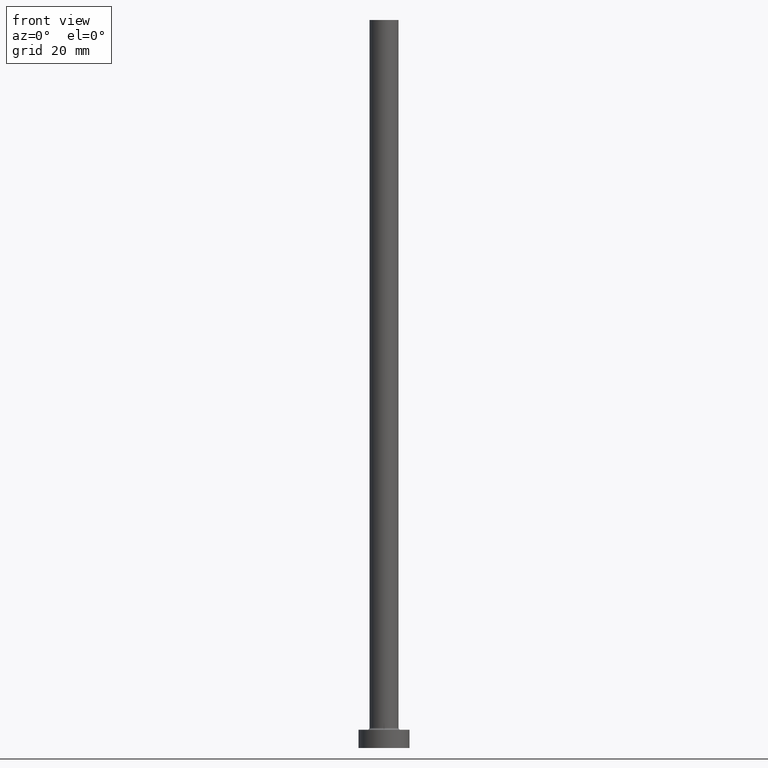
[diagram: clean part render]
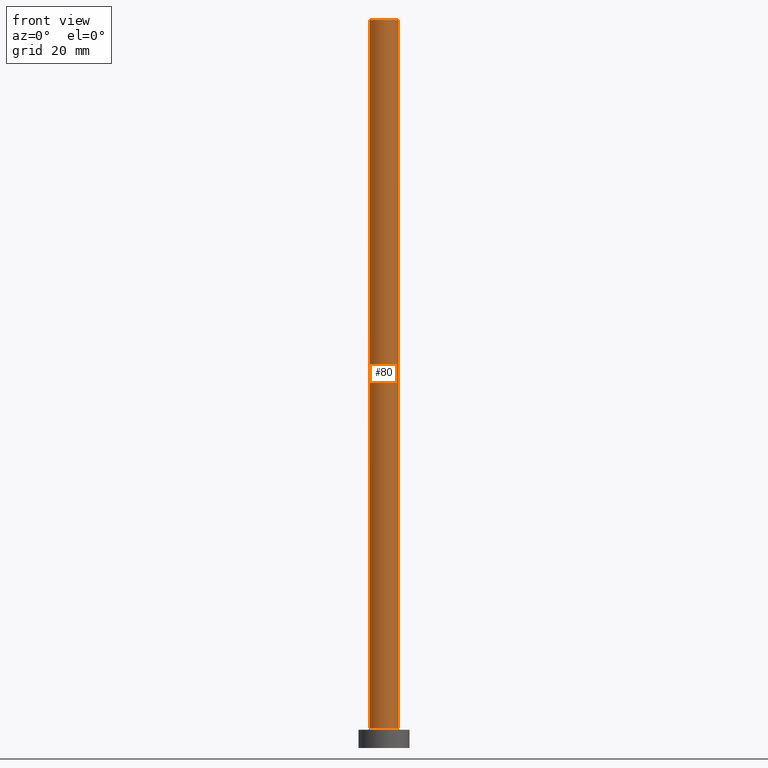
[diagram: same view with one face highlighted and labeled with its STEP entity id]
A machine part, front view. The second image highlights one B-rep face of the part: STEP entity #80.
In plain terms, the highlighted cylindrical surface (edge-blend (fillet) strip) has radius 4 mm, axis along (-0, -0, -1).
Its self-contained STEP definition (entity closure, byte-faithful):
#5 = CARTESIAN_POINT ( 'NONE',  ( -4.000000000000000000, 0.000000000000000000, 200.0000000000000000 ) ) ;
#15 = VERTEX_POINT ( 'NONE', #35 ) ;
#19 = VERTEX_POINT ( 'NONE', #49 ) ;
#35 = CARTESIAN_POINT ( 'NONE',  ( -4.000000000000000000, 0.000000000000000000, 200.0000000000000000 ) ) ;
#49 = CARTESIAN_POINT ( 'NONE',  ( 4.000000000000000000, 4.898587196589412829E-16, 5.500000000000005329 ) ) ;
#78 = AXIS2_PLACEMENT_3D ( 'NONE', #422, #112, #251 ) ;
#80 = ADVANCED_FACE ( 'NONE', ( #144 ), #283, .T. ) ;
#89 = CIRCLE ( 'NONE', #337, 4.000000000000000000 ) ;
#112 = DIRECTION ( 'NONE',  ( -0.000000000000000000, -0.000000000000000000, -1.000000000000000000 ) ) ;
#144 = FACE_OUTER_BOUND ( 'NONE', #444, .T. ) ;
#145 = DIRECTION ( 'NONE',  ( 1.000000000000000000, 0.000000000000000000, 0.000000000000000000 ) ) ;
#172 = ORIENTED_EDGE ( 'NONE', *, *, #316, .F. ) ;
#175 = DIRECTION ( 'NONE',  ( -0.000000000000000000, -0.000000000000000000, -1.000000000000000000 ) ) ;
#209 = DIRECTION ( 'NONE',  ( 0.000000000000000000, 0.000000000000000000, 1.000000000000000000 ) ) ;
#234 = ORIENTED_EDGE ( 'NONE', *, *, #333, .F. ) ;
#245 = VERTEX_POINT ( 'NONE', #435 ) ;
#251 = DIRECTION ( 'NONE',  ( -1.000000000000000000, 0.000000000000000000, 0.000000000000000000 ) ) ;
#270 = VECTOR ( 'NONE', #175, 1000.000000000000000 ) ;
#283 = CYLINDRICAL_SURFACE ( 'NONE', #78, 4.000000000000000000 ) ;
#285 = VECTOR ( 'NONE', #431, 1000.000000000000000 ) ;
#289 = EDGE_CURVE ( 'NONE', #396, #19, #397, .T. ) ;
#291 = CARTESIAN_POINT ( 'NONE',  ( 4.000000000000000000, 4.898587196589412829E-16, 200.0000000000000000 ) ) ;
#294 = DIRECTION ( 'NONE',  ( 0.000000000000000000, 0.000000000000000000, 1.000000000000000000 ) ) ;
#295 = LINE ( 'NONE', #291, #285 ) ;
#314 = CARTESIAN_POINT ( 'NONE',  ( 0.000000000000000000, 0.000000000000000000, 5.500000000000005329 ) ) ;
#316 = EDGE_CURVE ( 'NONE', #245, #19, #295, .T. ) ;
#321 = LINE ( 'NONE', #5, #270 ) ;
#333 = EDGE_CURVE ( 'NONE', #15, #245, #89, .T. ) ;
#337 = AXIS2_PLACEMENT_3D ( 'NONE', #388, #294, #428 ) ;
#339 = CARTESIAN_POINT ( 'NONE',  ( -4.000000000000000000, 0.000000000000000000, 5.500000000000005329 ) ) ;
#361 = EDGE_CURVE ( 'NONE', #15, #396, #321, .T. ) ;
#380 = ORIENTED_EDGE ( 'NONE', *, *, #361, .T. ) ;
#388 = CARTESIAN_POINT ( 'NONE',  ( 0.000000000000000000, 0.000000000000000000, 200.0000000000000000 ) ) ;
#396 = VERTEX_POINT ( 'NONE', #339 ) ;
#397 = CIRCLE ( 'NONE', #416, 4.000000000000000000 ) ;
#402 = ORIENTED_EDGE ( 'NONE', *, *, #289, .T. ) ;
#416 = AXIS2_PLACEMENT_3D ( 'NONE', #314, #209, #145 ) ;
#422 = CARTESIAN_POINT ( 'NONE',  ( 0.000000000000000000, 0.000000000000000000, 200.0000000000000000 ) ) ;
#428 = DIRECTION ( 'NONE',  ( 1.000000000000000000, 0.000000000000000000, 0.000000000000000000 ) ) ;
#431 = DIRECTION ( 'NONE',  ( -0.000000000000000000, -0.000000000000000000, -1.000000000000000000 ) ) ;
#435 = CARTESIAN_POINT ( 'NONE',  ( 4.000000000000000000, 4.898587196589412829E-16, 200.0000000000000000 ) ) ;
#444 = EDGE_LOOP ( 'NONE', ( #172, #234, #380, #402 ) ) ;